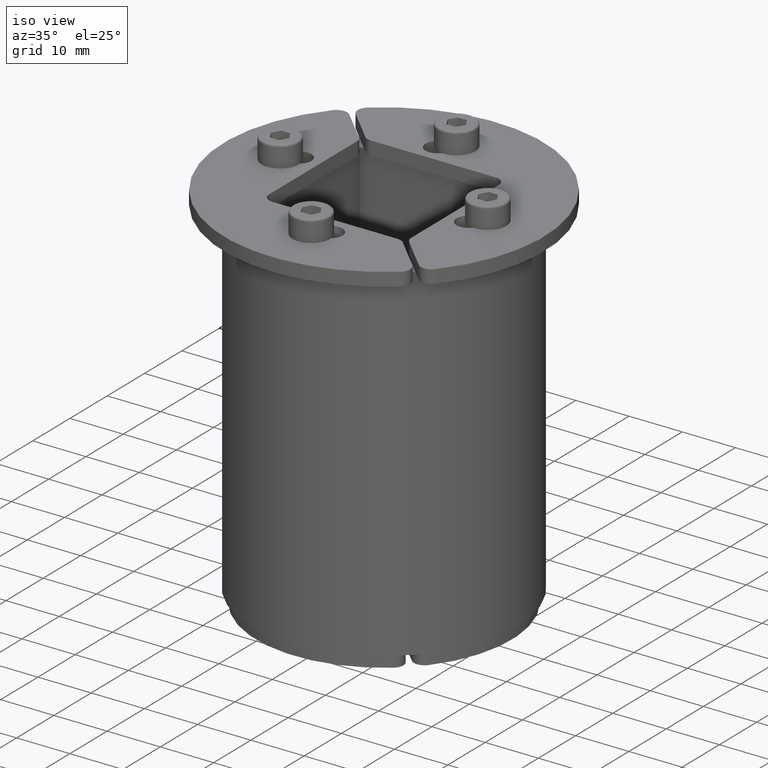
[diagram: clean part render]
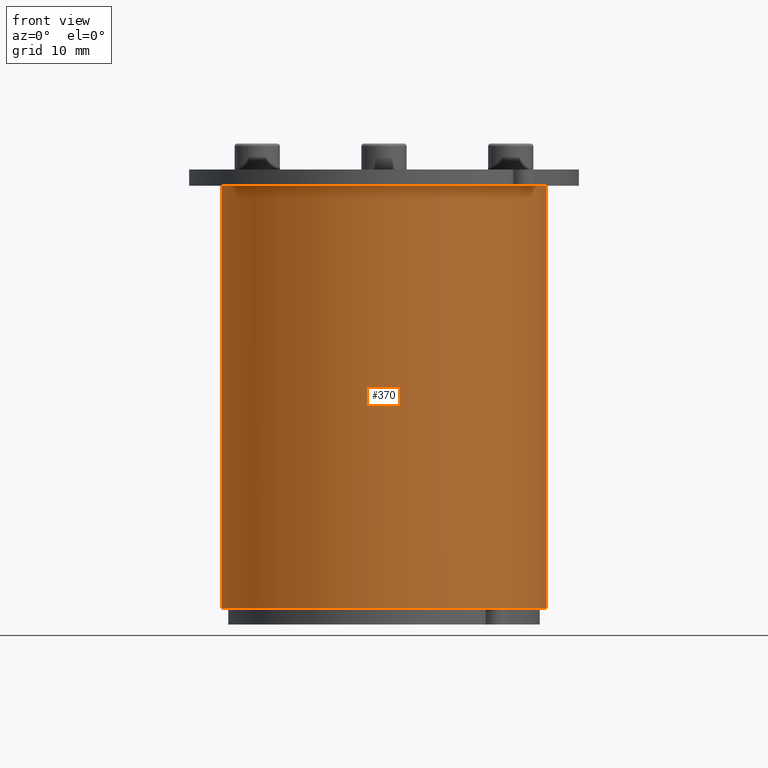
[diagram: tour spotlight — one face highlighted and labeled with its STEP entity id]
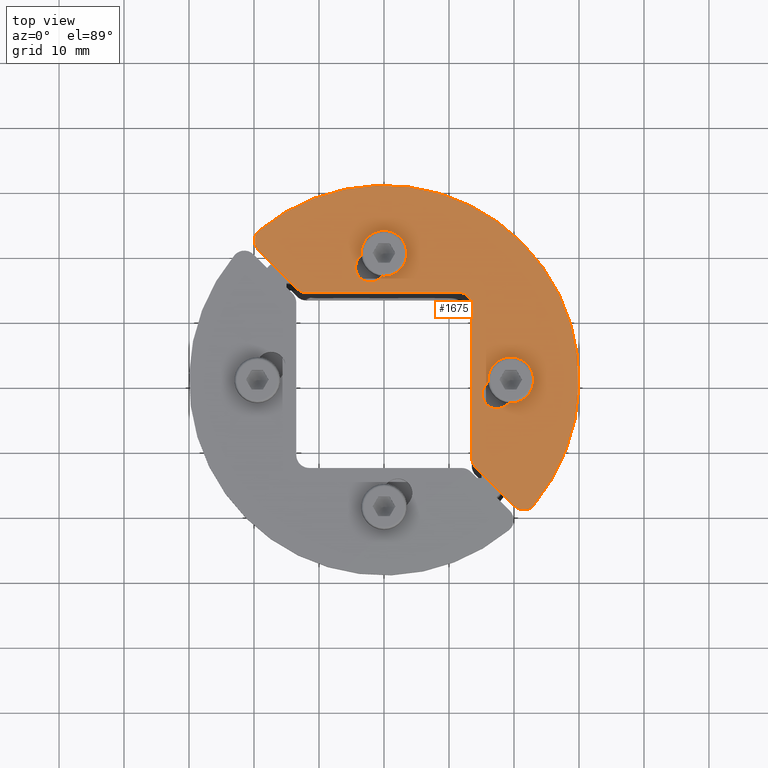
[diagram: tour spotlight — one face highlighted and labeled with its STEP entity id]
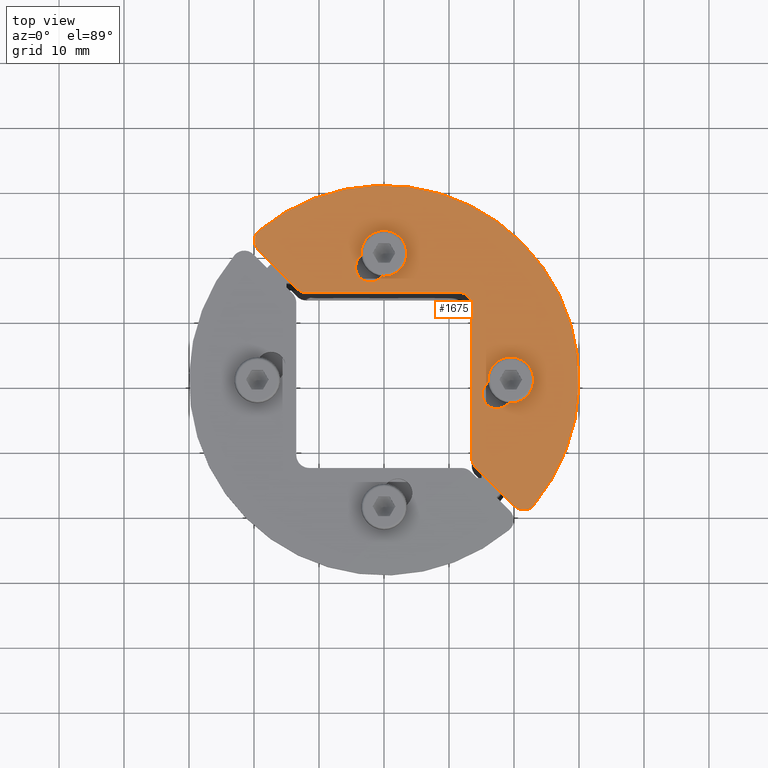
[diagram: tour spotlight — one face highlighted and labeled with its STEP entity id]
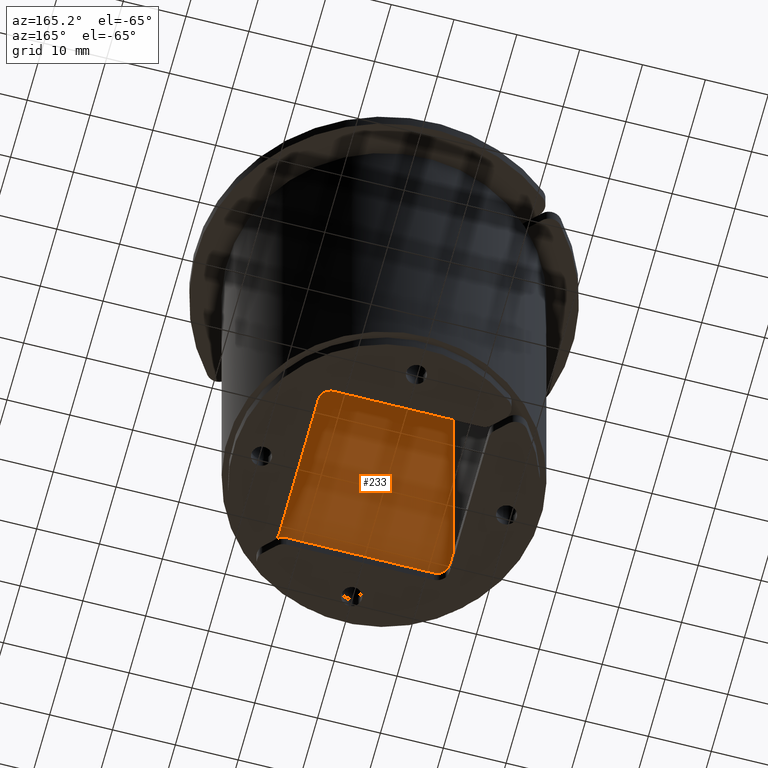
[diagram: tour spotlight — one face highlighted and labeled with its STEP entity id]
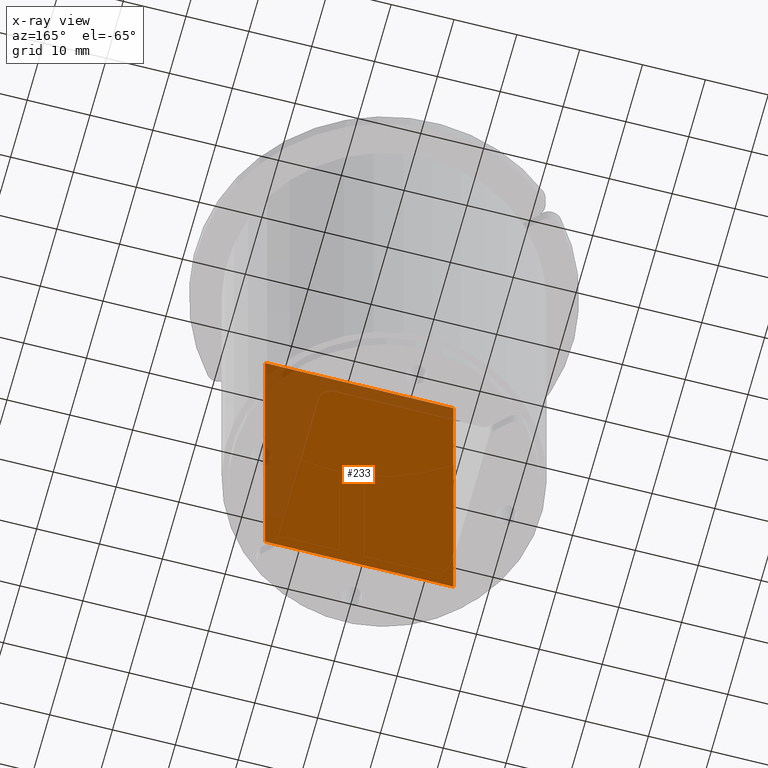
[diagram: x-ray of the same camera — body ghosted, this tour face saturated]
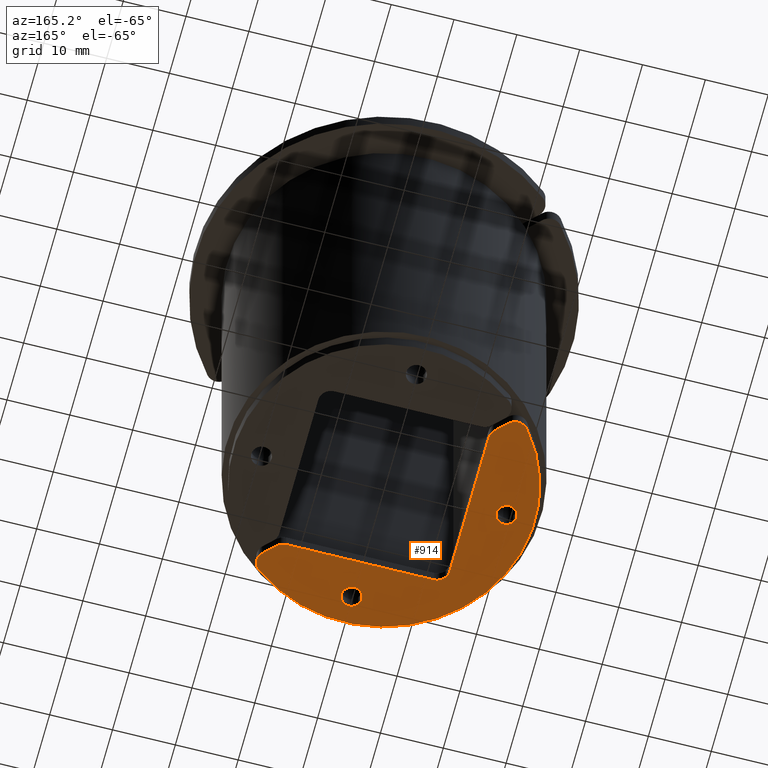
[diagram: tour spotlight — one face highlighted and labeled with its STEP entity id]
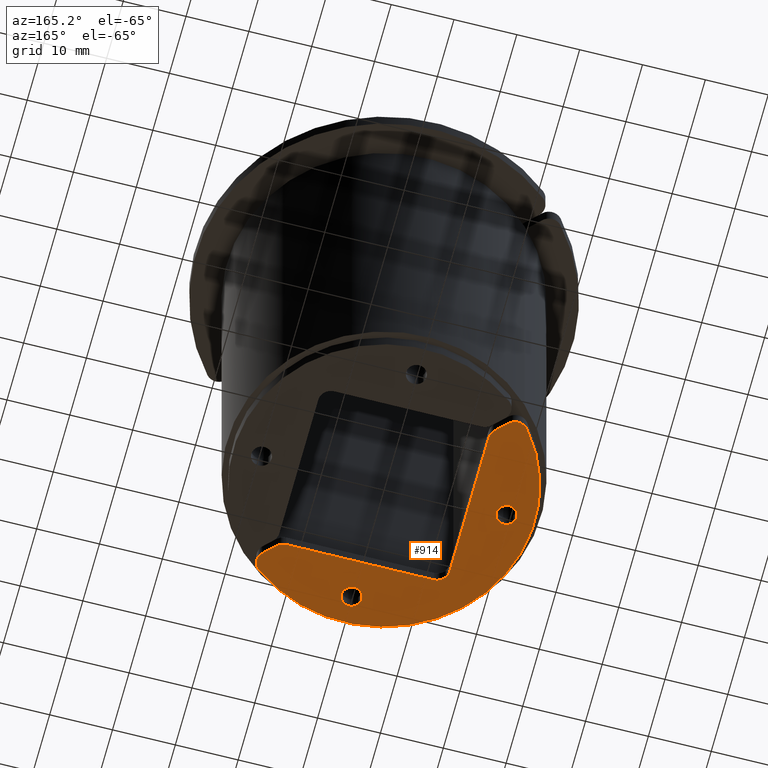
[diagram: tour spotlight — one face highlighted and labeled with its STEP entity id]
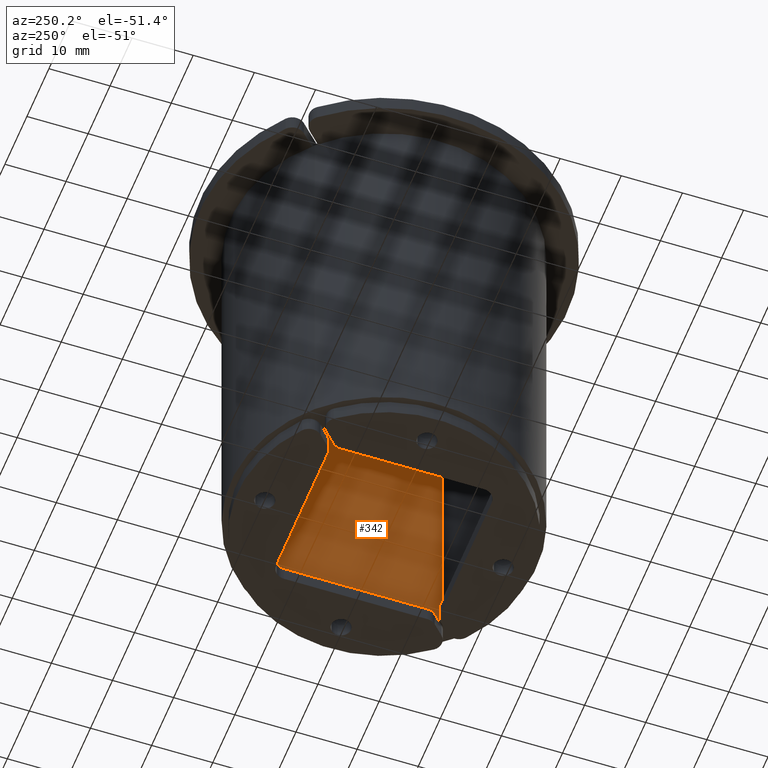
[diagram: tour spotlight — one face highlighted and labeled with its STEP entity id]
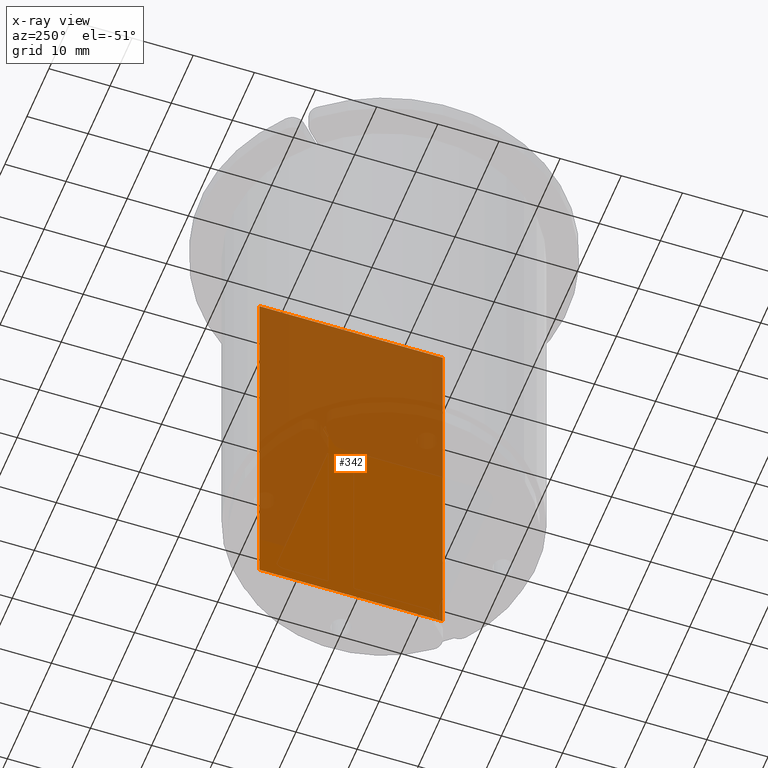
[diagram: x-ray of the same camera — body ghosted, this tour face saturated]
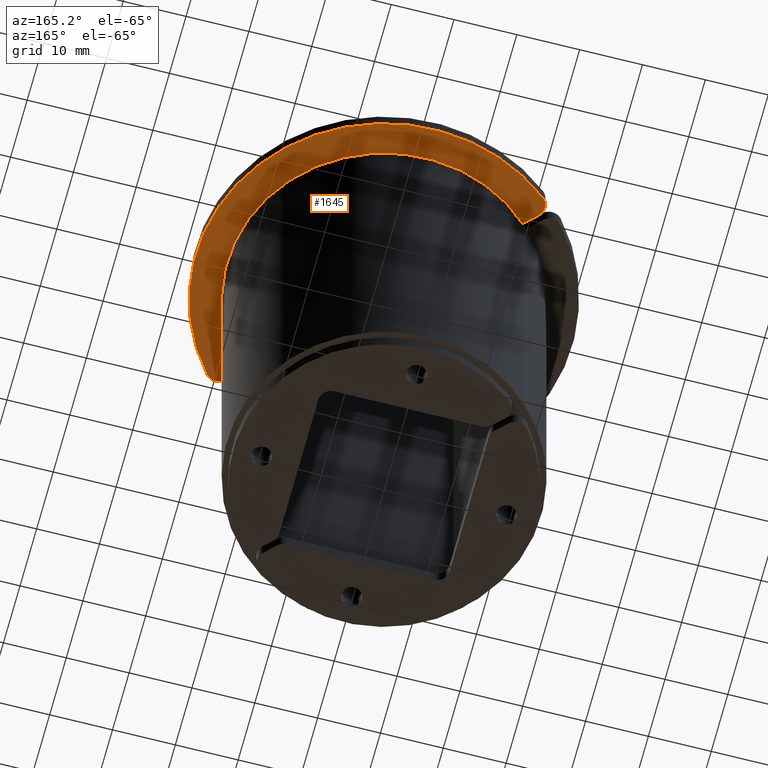
[diagram: tour spotlight — one face highlighted and labeled with its STEP entity id]
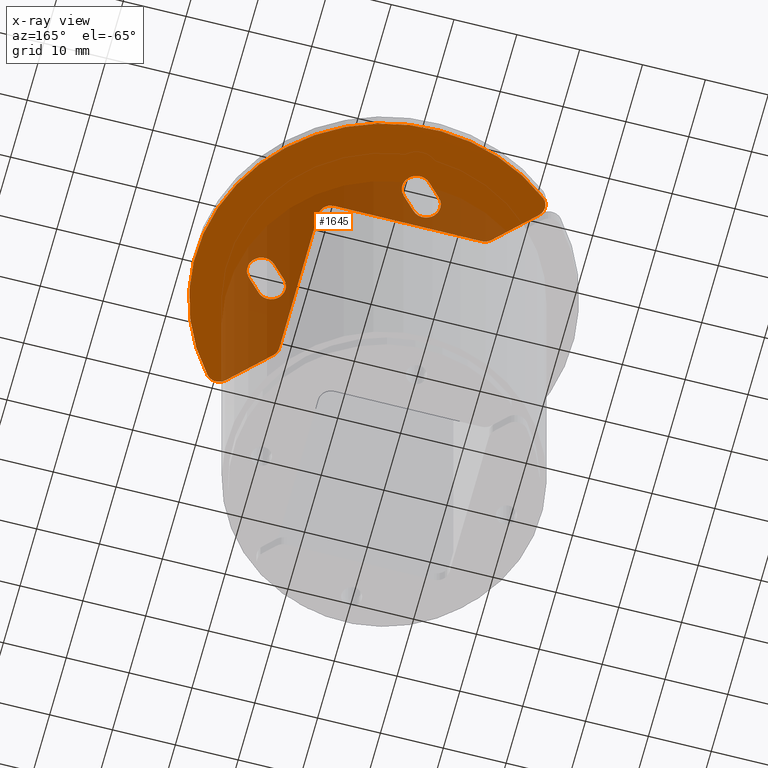
[diagram: x-ray of the same camera — body ghosted, this tour face saturated]
A machine part: a face-by-face anatomy tour. The part has 139 B-rep faces; the first image is the clean iso view, then the 8 largest visible faces are spotlighted one at a time (largest first), each with its STEP entity span.

Face 1 — front view, entity #370. In plain terms, the highlighted cylindrical surface (bore or boss wall) has radius 25 mm, axis along (0, 0, -1).
Definition (entity closure, byte-faithful):
#343=CARTESIAN_POINT('',(0.0,0.0,0.0));
#344=DIRECTION('',(0.0,0.0,-1.0));
#345=DIRECTION('',(0.707106781186547,-0.707106781186548,0.0));
#346=AXIS2_PLACEMENT_3D('',#343,#344,#345);
#347=CYLINDRICAL_SURFACE('',#346,24.999999999999996);
#348=CARTESIAN_POINT('',(-17.677669529663671,17.677669529663717,0.0));
#349=VERTEX_POINT('',#348);
#350=CARTESIAN_POINT('',(0.0,0.0,0.0));
#351=DIRECTION('',(0.0,0.0,1.0));
#352=DIRECTION('',(0.707106781186547,-0.707106781186548,0.0));
#353=AXIS2_PLACEMENT_3D('',#350,#351,#352);
#354=CIRCLE('',#353,24.999999999999996);
#355=EDGE_CURVE('',#349,#349,#354,.T.);
#356=ORIENTED_EDGE('',*,*,#355,.F.);
#357=EDGE_LOOP('',(#356));
#358=FACE_OUTER_BOUND('',#357,.T.);
#359=CARTESIAN_POINT('',(-17.677669529663671,17.677669529663717,-65.0));
#360=VERTEX_POINT('',#359);
#361=CARTESIAN_POINT('',(0.0,0.0,-65.0));
#362=DIRECTION('',(0.0,0.0,-1.0));
#363=DIRECTION('',(0.707106781186547,-0.707106781186548,0.0));
#364=AXIS2_PLACEMENT_3D('',#361,#362,#363);
#365=CIRCLE('',#364,24.999999999999996);
#366=EDGE_CURVE('',#360,#360,#365,.T.);
#367=ORIENTED_EDGE('',*,*,#366,.F.);
#368=EDGE_LOOP('',(#367));
#369=FACE_BOUND('',#368,.T.);
#370=ADVANCED_FACE('',(#358,#369),#347,.T.);

Face 2 — top view, entity #1675. In plain terms, the highlighted planar face has unit normal (0, 0, 1).
Definition (entity closure, byte-faithful):
#1043=CARTESIAN_POINT('',(21.090990257669752,-1.590990257669733,0.0));
#1044=VERTEX_POINT('',#1043);
#1045=CARTESIAN_POINT('',(18.969669914110124,-3.712310601229367,0.0));
#1046=VERTEX_POINT('',#1045);
#1047=CARTESIAN_POINT('',(21.090990257669755,-1.590990257669733,0.0));
#1048=DIRECTION('',(-0.707106781186547,-0.707106781186548,0.0));
#1049=VECTOR('',#1048,2.999999999999986);
#1050=LINE('',#1047,#1049);
#1051=EDGE_CURVE('',#1044,#1046,#1050,.T.);
#1083=CARTESIAN_POINT('',(17.909009742330294,1.590990257669733,0.0));
#1084=VERTEX_POINT('',#1083);
#1085=CARTESIAN_POINT('',(19.500000000000025,0.0,0.0));
#1086=DIRECTION('',(0.0,0.0,-1.0));
#1087=DIRECTION('',(0.707106781186547,-0.707106781186549,0.0));
#1088=AXIS2_PLACEMENT_3D('',#1085,#1086,#1087);
#1089=CIRCLE('',#1088,2.25);
#1090=EDGE_CURVE('',#1084,#1044,#1089,.T.);
#1116=CARTESIAN_POINT('',(15.787689398770659,-0.530330085889901,0.0));
#1117=VERTEX_POINT('',#1116);
#1118=CARTESIAN_POINT('',(15.787689398770659,-0.5303300858899,0.0));
#1119=DIRECTION('',(0.707106781186548,0.707106781186547,0.0));
#1120=VECTOR('',#1119,2.999999999999989);
#1121=LINE('',#1118,#1120);
#1122=EDGE_CURVE('',#1117,#1084,#1121,.T.);
#1147=CARTESIAN_POINT('',(17.378679656440394,-2.121320343559634,0.0));
#1148=DIRECTION('',(0.0,0.0,-1.0));
#1149=DIRECTION('',(-0.707106781186548,0.707106781186548,0.0));
#1150=AXIS2_PLACEMENT_3D('',#1147,#1148,#1149);
#1151=CIRCLE('',#1150,2.25);
#1152=EDGE_CURVE('',#1046,#1117,#1151,.T.);
#1171=CARTESIAN_POINT('',(1.590990257669729,17.909009742330294,0.0));
#1172=VERTEX_POINT('',#1171);
#1173=CARTESIAN_POINT('',(-0.530330085889901,15.787689398770661,0.0));
#1174=VERTEX_POINT('',#1173);
#1175=CARTESIAN_POINT('',(1.59099025766973,17.909009742330294,0.0));
#1176=DIRECTION('',(-0.707106781186547,-0.707106781186548,0.0));
#1177=VECTOR('',#1176,2.999999999999985);
#1178=LINE('',#1175,#1177);
#1179=EDGE_CURVE('',#1172,#1174,#1178,.T.);
#1211=CARTESIAN_POINT('',(-1.590990257669729,21.090990257669752,0.0));
#1212=VERTEX_POINT('',#1211);
#1213=CARTESIAN_POINT('',(0.0,19.500000000000025,0.0));
#1214=DIRECTION('',(0.0,0.0,-1.0));
#1215=DIRECTION('',(0.707106781186548,-0.707106781186548,0.0));
#1216=AXIS2_PLACEMENT_3D('',#1213,#1214,#1215);
#1217=CIRCLE('',#1216,2.25);
#1218=EDGE_CURVE('',#1212,#1172,#1217,.T.);
#1244=CARTESIAN_POINT('',(-3.712310601229372,18.969669914110124,0.0));
#1245=VERTEX_POINT('',#1244);
#1246=CARTESIAN_POINT('',(-3.712310601229373,18.969669914110124,0.0));
#1247=DIRECTION('',(0.70710678118655,0.707106781186546,0.0));
#1248=VECTOR('',#1247,2.999999999999993);
#1249=LINE('',#1246,#1248);
#1250=EDGE_CURVE('',#1245,#1212,#1249,.T.);
#1275=CARTESIAN_POINT('',(-2.121320343559634,17.378679656440394,0.0));
#1276=DIRECTION('',(0.0,0.0,-1.0));
#1277=DIRECTION('',(-0.70710678118655,0.707106781186546,0.0));
#1278=AXIS2_PLACEMENT_3D('',#1275,#1276,#1277);
#1279=CIRCLE('',#1278,2.249999999999999);
#1280=EDGE_CURVE('',#1174,#1245,#1279,.T.);
#1299=CARTESIAN_POINT('',(-19.234443042801722,23.022515084873273,0.0));
#1300=VERTEX_POINT('',#1299);
#1301=CARTESIAN_POINT('',(-19.366360402321767,20.073467183508331,0.0));
#1302=VERTEX_POINT('',#1301);
#1303=CARTESIAN_POINT('',(-17.952146839948682,21.487680745881409,0.0));
#1304=DIRECTION('',(0.0,0.0,1.0));
#1305=DIRECTION('',(-0.641148101426526,0.76741716949594,0.0));
#1306=AXIS2_PLACEMENT_3D('',#1303,#1304,#1305);
#1307=CIRCLE('',#1306,2.0);
#1308=EDGE_CURVE('',#1300,#1302,#1307,.T.);
#1341=CARTESIAN_POINT('',(-13.37867965644033,14.085786437626918,0.0));
#1342=VERTEX_POINT('',#1341);
#1343=CARTESIAN_POINT('',(-19.366360402321767,20.073467183508331,0.0));
#1344=DIRECTION('',(0.707106781186549,-0.707106781186546,0.0));
#1345=VECTOR('',#1344,8.467859317985763);
#1346=LINE('',#1343,#1345);
#1347=EDGE_CURVE('',#1302,#1342,#1346,.T.);
#1372=CARTESIAN_POINT('',(-11.964466094067234,13.500000000000014,0.0));
#1373=VERTEX_POINT('',#1372);
#1374=CARTESIAN_POINT('',(-11.964466094067234,15.500000000000014,0.0));
#1375=DIRECTION('',(0.0,0.0,1.0));
#1376=DIRECTION('',(-0.707106781186548,-0.707106781186548,0.0));
#1377=AXIS2_PLACEMENT_3D('',#1374,#1375,#1376);
#1378=CIRCLE('',#1377,2.0);
#1379=EDGE_CURVE('',#1342,#1373,#1378,.T.);
#1405=CARTESIAN_POINT('',(11.500000000000005,13.500000000000014,0.0));
#1406=VERTEX_POINT('',#1405);
#1407=CARTESIAN_POINT('',(-11.964466094067234,13.500000000000014,0.0));
#1408=DIRECTION('',(1.0,0.0,0.0));
#1409=VECTOR('',#1408,23.464466094067241);
#1410=LINE('',#1407,#1409);
#1411=EDGE_CURVE('',#1373,#1406,#1410,.T.);
#1436=CARTESIAN_POINT('',(13.500000000000014,11.499999999999988,0.0));
#1437=VERTEX_POINT('',#1436);
#1438=CARTESIAN_POINT('',(11.500000000000005,11.500000000000005,0.0));
#1439=DIRECTION('',(0.0,0.0,-1.0));
#1440=DIRECTION('',(-1.0,0.0,0.0));
#1441=AXIS2_PLACEMENT_3D('',#1438,#1439,#1440);
#1442=CIRCLE('',#1441,2.0);
#1443=EDGE_CURVE('',#1406,#1437,#1442,.T.);
#1469=CARTESIAN_POINT('',(13.499999999999998,-11.96446609406725,0.0));
#1470=VERTEX_POINT('',#1469);
#1471=CARTESIAN_POINT('',(13.500000000000014,11.499999999999986,0.0));
#1472=DIRECTION('',(0.0,-1.0,0.0));
#1473=VECTOR('',#1472,23.464466094067234);
#1474=LINE('',#1471,#1473);
#1475=EDGE_CURVE('',#1437,#1470,#1474,.T.);
#1500=CARTESIAN_POINT('',(14.085786437626908,-13.378679656440342,0.0));
#1501=VERTEX_POINT('',#1500);
#1502=CARTESIAN_POINT('',(15.500000000000016,-11.964466094067234,0.0));
#1503=DIRECTION('',(0.0,0.0,1.0));
#1504=DIRECTION('',(-1.0,0.0,0.0));
#1505=AXIS2_PLACEMENT_3D('',#1502,#1503,#1504);
#1506=CIRCLE('',#1505,1.999999999999996);
#1507=EDGE_CURVE('',#1470,#1501,#1506,.T.);
#1533=CARTESIAN_POINT('',(20.07346718350831,-19.366360402321739,0.0));
#1534=VERTEX_POINT('',#1533);
#1535=CARTESIAN_POINT('',(14.085786437626908,-13.378679656440342,0.0));
#1536=DIRECTION('',(0.707106781186548,-0.707106781186547,0.0));
#1537=VECTOR('',#1536,8.467859317985726);
#1538=LINE('',#1535,#1537);
#1539=EDGE_CURVE('',#1501,#1534,#1538,.T.);
#1564=CARTESIAN_POINT('',(23.022515084872865,-19.234443042802209,0.0));
#1565=VERTEX_POINT('',#1564);
#1566=CARTESIAN_POINT('',(21.487680745881409,-17.952146839948654,0.0));
#1567=DIRECTION('',(0.0,0.0,1.0));
#1568=DIRECTION('',(-0.707106781186552,-0.707106781186543,0.0));
#1569=AXIS2_PLACEMENT_3D('',#1566,#1567,#1568);
#1570=CIRCLE('',#1569,2.0);
#1571=EDGE_CURVE('',#1534,#1565,#1570,.T.);
#1597=CARTESIAN_POINT('',(0.0,0.0,0.0));
#1598=DIRECTION('',(0.0,0.0,1.0));
#1599=DIRECTION('',(0.767417169495762,-0.64114810142674,0.0));
#1600=AXIS2_PLACEMENT_3D('',#1597,#1598,#1599);
#1601=CIRCLE('',#1600,29.999999999999996);
#1602=EDGE_CURVE('',#1565,#1300,#1601,.T.);
#1646=CARTESIAN_POINT('',(9.299162312304922,9.299162312304928,0.0));
#1647=DIRECTION('',(0.0,0.0,1.0));
#1648=DIRECTION('',(1.0,0.0,0.0));
#1649=AXIS2_PLACEMENT_3D('',#1646,#1647,#1648);
#1650=PLANE('',#1649);
#1651=ORIENTED_EDGE('',*,*,#1602,.T.);
#1652=ORIENTED_EDGE('',*,*,#1308,.T.);
#1653=ORIENTED_EDGE('',*,*,#1347,.T.);
#1654=ORIENTED_EDGE('',*,*,#1379,.T.);
#1655=ORIENTED_EDGE('',*,*,#1411,.T.);
#1656=ORIENTED_EDGE('',*,*,#1443,.T.);
#1657=ORIENTED_EDGE('',*,*,#1475,.T.);
#1658=ORIENTED_EDGE('',*,*,#1507,.T.);
#1659=ORIENTED_EDGE('',*,*,#1539,.T.);
#1660=ORIENTED_EDGE('',*,*,#1571,.T.);
#1661=EDGE_LOOP('',(#1651,#1652,#1653,#1654,#1655,#1656,#1657,#1658,#1659,#1660));
#1662=FACE_OUTER_BOUND('',#1661,.T.);
#1663=ORIENTED_EDGE('',*,*,#1051,.T.);
#1664=ORIENTED_EDGE('',*,*,#1152,.T.);
#1665=ORIENTED_EDGE('',*,*,#1122,.T.);
#1666=ORIENTED_EDGE('',*,*,#1090,.T.);
#1667=EDGE_LOOP('',(#1663,#1664,#1665,#1666));
#1668=FACE_BOUND('',#1667,.T.);
#1669=ORIENTED_EDGE('',*,*,#1179,.T.);
#1670=ORIENTED_EDGE('',*,*,#1280,.T.);
#1671=ORIENTED_EDGE('',*,*,#1250,.T.);
#1672=ORIENTED_EDGE('',*,*,#1218,.T.);
#1673=EDGE_LOOP('',(#1669,#1670,#1671,#1672));
#1674=FACE_BOUND('',#1673,.T.);
#1675=ADVANCED_FACE('',(#1662,#1668,#1674),#1650,.T.);

Face 3 — top view, entity #1675. In plain terms, the highlighted planar face has unit normal (0, -0, 1).
Definition (entity closure, byte-faithful):
#1043=CARTESIAN_POINT('',(21.090990257669752,-1.590990257669733,0.0));
#1044=VERTEX_POINT('',#1043);
#1045=CARTESIAN_POINT('',(18.969669914110124,-3.712310601229367,0.0));
#1046=VERTEX_POINT('',#1045);
#1047=CARTESIAN_POINT('',(21.090990257669755,-1.590990257669733,0.0));
#1048=DIRECTION('',(-0.707106781186547,-0.707106781186548,0.0));
#1049=VECTOR('',#1048,2.999999999999986);
#1050=LINE('',#1047,#1049);
#1051=EDGE_CURVE('',#1044,#1046,#1050,.T.);
#1083=CARTESIAN_POINT('',(17.909009742330294,1.590990257669733,0.0));
#1084=VERTEX_POINT('',#1083);
#1085=CARTESIAN_POINT('',(19.500000000000025,0.0,0.0));
#1086=DIRECTION('',(0.0,0.0,-1.0));
#1087=DIRECTION('',(0.707106781186547,-0.707106781186549,0.0));
#1088=AXIS2_PLACEMENT_3D('',#1085,#1086,#1087);
#1089=CIRCLE('',#1088,2.25);
#1090=EDGE_CURVE('',#1084,#1044,#1089,.T.);
#1116=CARTESIAN_POINT('',(15.787689398770659,-0.530330085889901,0.0));
#1117=VERTEX_POINT('',#1116);
#1118=CARTESIAN_POINT('',(15.787689398770659,-0.5303300858899,0.0));
#1119=DIRECTION('',(0.707106781186548,0.707106781186547,0.0));
#1120=VECTOR('',#1119,2.999999999999989);
#1121=LINE('',#1118,#1120);
#1122=EDGE_CURVE('',#1117,#1084,#1121,.T.);
#1147=CARTESIAN_POINT('',(17.378679656440394,-2.121320343559634,0.0));
#1148=DIRECTION('',(0.0,0.0,-1.0));
#1149=DIRECTION('',(-0.707106781186548,0.707106781186548,0.0));
#1150=AXIS2_PLACEMENT_3D('',#1147,#1148,#1149);
#1151=CIRCLE('',#1150,2.25);
#1152=EDGE_CURVE('',#1046,#1117,#1151,.T.);
#1171=CARTESIAN_POINT('',(1.590990257669729,17.909009742330294,0.0));
#1172=VERTEX_POINT('',#1171);
#1173=CARTESIAN_POINT('',(-0.530330085889901,15.787689398770661,0.0));
#1174=VERTEX_POINT('',#1173);
#1175=CARTESIAN_POINT('',(1.59099025766973,17.909009742330294,0.0));
#1176=DIRECTION('',(-0.707106781186547,-0.707106781186548,0.0));
#1177=VECTOR('',#1176,2.999999999999985);
#1178=LINE('',#1175,#1177);
#1179=EDGE_CURVE('',#1172,#1174,#1178,.T.);
#1211=CARTESIAN_POINT('',(-1.590990257669729,21.090990257669752,0.0));
#1212=VERTEX_POINT('',#1211);
#1213=CARTESIAN_POINT('',(0.0,19.500000000000025,0.0));
#1214=DIRECTION('',(0.0,0.0,-1.0));
#1215=DIRECTION('',(0.707106781186548,-0.707106781186548,0.0));
#1216=AXIS2_PLACEMENT_3D('',#1213,#1214,#1215);
#1217=CIRCLE('',#1216,2.25);
#1218=EDGE_CURVE('',#1212,#1172,#1217,.T.);
#1244=CARTESIAN_POINT('',(-3.712310601229372,18.969669914110124,0.0));
#1245=VERTEX_POINT('',#1244);
#1246=CARTESIAN_POINT('',(-3.712310601229373,18.969669914110124,0.0));
#1247=DIRECTION('',(0.70710678118655,0.707106781186546,0.0));
#1248=VECTOR('',#1247,2.999999999999993);
#1249=LINE('',#1246,#1248);
#1250=EDGE_CURVE('',#1245,#1212,#1249,.T.);
#1275=CARTESIAN_POINT('',(-2.121320343559634,17.378679656440394,0.0));
#1276=DIRECTION('',(0.0,0.0,-1.0));
#1277=DIRECTION('',(-0.70710678118655,0.707106781186546,0.0));
#1278=AXIS2_PLACEMENT_3D('',#1275,#1276,#1277);
#1279=CIRCLE('',#1278,2.249999999999999);
#1280=EDGE_CURVE('',#1174,#1245,#1279,.T.);
#1299=CARTESIAN_POINT('',(-19.234443042801722,23.022515084873273,0.0));
#1300=VERTEX_POINT('',#1299);
#1301=CARTESIAN_POINT('',(-19.366360402321767,20.073467183508331,0.0));
#1302=VERTEX_POINT('',#1301);
#1303=CARTESIAN_POINT('',(-17.952146839948682,21.487680745881409,0.0));
#1304=DIRECTION('',(0.0,0.0,1.0));
#1305=DIRECTION('',(-0.641148101426526,0.76741716949594,0.0));
#1306=AXIS2_PLACEMENT_3D('',#1303,#1304,#1305);
#1307=CIRCLE('',#1306,2.0);
#1308=EDGE_CURVE('',#1300,#1302,#1307,.T.);
#1341=CARTESIAN_POINT('',(-13.37867965644033,14.085786437626918,0.0));
#1342=VERTEX_POINT('',#1341);
#1343=CARTESIAN_POINT('',(-19.366360402321767,20.073467183508331,0.0));
#1344=DIRECTION('',(0.707106781186549,-0.707106781186546,0.0));
#1345=VECTOR('',#1344,8.467859317985763);
#1346=LINE('',#1343,#1345);
#1347=EDGE_CURVE('',#1302,#1342,#1346,.T.);
#1372=CARTESIAN_POINT('',(-11.964466094067234,13.500000000000014,0.0));
#1373=VERTEX_POINT('',#1372);
#1374=CARTESIAN_POINT('',(-11.964466094067234,15.500000000000014,0.0));
#1375=DIRECTION('',(0.0,0.0,1.0));
#1376=DIRECTION('',(-0.707106781186548,-0.707106781186548,0.0));
#1377=AXIS2_PLACEMENT_3D('',#1374,#1375,#1376);
#1378=CIRCLE('',#1377,2.0);
#1379=EDGE_CURVE('',#1342,#1373,#1378,.T.);
#1405=CARTESIAN_POINT('',(11.500000000000005,13.500000000000014,0.0));
#1406=VERTEX_POINT('',#1405);
#1407=CARTESIAN_POINT('',(-11.964466094067234,13.500000000000014,0.0));
#1408=DIRECTION('',(1.0,0.0,0.0));
#1409=VECTOR('',#1408,23.464466094067241);
#1410=LINE('',#1407,#1409);
#1411=EDGE_CURVE('',#1373,#1406,#1410,.T.);
#1436=CARTESIAN_POINT('',(13.500000000000014,11.499999999999988,0.0));
#1437=VERTEX_POINT('',#1436);
#1438=CARTESIAN_POINT('',(11.500000000000005,11.500000000000005,0.0));
#1439=DIRECTION('',(0.0,0.0,-1.0));
#1440=DIRECTION('',(-1.0,0.0,0.0));
#1441=AXIS2_PLACEMENT_3D('',#1438,#1439,#1440);
#1442=CIRCLE('',#1441,2.0);
#1443=EDGE_CURVE('',#1406,#1437,#1442,.T.);
#1469=CARTESIAN_POINT('',(13.499999999999998,-11.96446609406725,0.0));
#1470=VERTEX_POINT('',#1469);
#1471=CARTESIAN_POINT('',(13.500000000000014,11.499999999999986,0.0));
#1472=DIRECTION('',(0.0,-1.0,0.0));
#1473=VECTOR('',#1472,23.464466094067234);
#1474=LINE('',#1471,#1473);
#1475=EDGE_CURVE('',#1437,#1470,#1474,.T.);
#1500=CARTESIAN_POINT('',(14.085786437626908,-13.378679656440342,0.0));
#1501=VERTEX_POINT('',#1500);
#1502=CARTESIAN_POINT('',(15.500000000000016,-11.964466094067234,0.0));
#1503=DIRECTION('',(0.0,0.0,1.0));
#1504=DIRECTION('',(-1.0,0.0,0.0));
#1505=AXIS2_PLACEMENT_3D('',#1502,#1503,#1504);
#1506=CIRCLE('',#1505,1.999999999999996);
#1507=EDGE_CURVE('',#1470,#1501,#1506,.T.);
#1533=CARTESIAN_POINT('',(20.07346718350831,-19.366360402321739,0.0));
#1534=VERTEX_POINT('',#1533);
#1535=CARTESIAN_POINT('',(14.085786437626908,-13.378679656440342,0.0));
#1536=DIRECTION('',(0.707106781186548,-0.707106781186547,0.0));
#1537=VECTOR('',#1536,8.467859317985726);
#1538=LINE('',#1535,#1537);
#1539=EDGE_CURVE('',#1501,#1534,#1538,.T.);
#1564=CARTESIAN_POINT('',(23.022515084872865,-19.234443042802209,0.0));
#1565=VERTEX_POINT('',#1564);
#1566=CARTESIAN_POINT('',(21.487680745881409,-17.952146839948654,0.0));
#1567=DIRECTION('',(0.0,0.0,1.0));
#1568=DIRECTION('',(-0.707106781186552,-0.707106781186543,0.0));
#1569=AXIS2_PLACEMENT_3D('',#1566,#1567,#1568);
#1570=CIRCLE('',#1569,2.0);
#1571=EDGE_CURVE('',#1534,#1565,#1570,.T.);
#1597=CARTESIAN_POINT('',(0.0,0.0,0.0));
#1598=DIRECTION('',(0.0,0.0,1.0));
#1599=DIRECTION('',(0.767417169495762,-0.64114810142674,0.0));
#1600=AXIS2_PLACEMENT_3D('',#1597,#1598,#1599);
#1601=CIRCLE('',#1600,29.999999999999996);
#1602=EDGE_CURVE('',#1565,#1300,#1601,.T.);
#1646=CARTESIAN_POINT('',(9.299162312304922,9.299162312304928,0.0));
#1647=DIRECTION('',(0.0,0.0,1.0));
#1648=DIRECTION('',(1.0,0.0,0.0));
#1649=AXIS2_PLACEMENT_3D('',#1646,#1647,#1648);
#1650=PLANE('',#1649);
#1651=ORIENTED_EDGE('',*,*,#1602,.T.);
#1652=ORIENTED_EDGE('',*,*,#1308,.T.);
#1653=ORIENTED_EDGE('',*,*,#1347,.T.);
#1654=ORIENTED_EDGE('',*,*,#1379,.T.);
#1655=ORIENTED_EDGE('',*,*,#1411,.T.);
#1656=ORIENTED_EDGE('',*,*,#1443,.T.);
#1657=ORIENTED_EDGE('',*,*,#1475,.T.);
#1658=ORIENTED_EDGE('',*,*,#1507,.T.);
#1659=ORIENTED_EDGE('',*,*,#1539,.T.);
#1660=ORIENTED_EDGE('',*,*,#1571,.T.);
#1661=EDGE_LOOP('',(#1651,#1652,#1653,#1654,#1655,#1656,#1657,#1658,#1659,#1660));
#1662=FACE_OUTER_BOUND('',#1661,.T.);
#1663=ORIENTED_EDGE('',*,*,#1051,.T.);
#1664=ORIENTED_EDGE('',*,*,#1152,.T.);
#1665=ORIENTED_EDGE('',*,*,#1122,.T.);
#1666=ORIENTED_EDGE('',*,*,#1090,.T.);
#1667=EDGE_LOOP('',(#1663,#1664,#1665,#1666));
#1668=FACE_BOUND('',#1667,.T.);
#1669=ORIENTED_EDGE('',*,*,#1179,.T.);
#1670=ORIENTED_EDGE('',*,*,#1280,.T.);
#1671=ORIENTED_EDGE('',*,*,#1250,.T.);
#1672=ORIENTED_EDGE('',*,*,#1218,.T.);
#1673=EDGE_LOOP('',(#1669,#1670,#1671,#1672));
#1674=FACE_BOUND('',#1673,.T.);
#1675=ADVANCED_FACE('',(#1662,#1668,#1674),#1650,.T.);

Face 4 — auxiliary view, entity #233. An x-ray twin of the same camera follows (body ghosted, this face saturated) — the face is partly hidden behind the body. In plain terms, the highlighted planar face has unit normal (0, -1, 0).
Definition (entity closure, byte-faithful):
#170=CARTESIAN_POINT('',(-15.000000000000695,-15.00000000000002,0.0));
#171=VERTEX_POINT('',#170);
#178=CARTESIAN_POINT('',(-15.000000000000695,-15.00000000000002,-65.0));
#179=VERTEX_POINT('',#178);
#180=CARTESIAN_POINT('',(-15.000000000000695,-15.00000000000002,0.0));
#181=DIRECTION('',(0.0,0.0,-1.0));
#182=VECTOR('',#181,65.0);
#183=LINE('',#180,#182);
#184=EDGE_CURVE('',#171,#179,#183,.T.);
#203=CARTESIAN_POINT('',(14.999999999999288,-15.000000000000718,0.0));
#204=DIRECTION('',(0.0,-1.0,0.0));
#205=DIRECTION('',(-1.0,0.0,0.0));
#206=AXIS2_PLACEMENT_3D('',#203,#204,#205);
#207=PLANE('',#206);
#208=CARTESIAN_POINT('',(15.0,-15.0,0.0));
#209=VERTEX_POINT('',#208);
#210=CARTESIAN_POINT('',(-15.000000000000695,-15.00000000000002,0.0));
#211=DIRECTION('',(1.0,0.0,0.0));
#212=VECTOR('',#211,29.999999999999982);
#213=LINE('',#210,#212);
#214=EDGE_CURVE('',#171,#209,#213,.T.);
#215=ORIENTED_EDGE('',*,*,#214,.T.);
#216=CARTESIAN_POINT('',(15.0,-15.0,-65.0));
#217=VERTEX_POINT('',#216);
#218=CARTESIAN_POINT('',(15.0,-15.0,0.0));
#219=DIRECTION('',(0.0,0.0,-1.0));
#220=VECTOR('',#219,65.0);
#221=LINE('',#218,#220);
#222=EDGE_CURVE('',#209,#217,#221,.T.);
#223=ORIENTED_EDGE('',*,*,#222,.T.);
#224=CARTESIAN_POINT('',(14.999999999999288,-15.000000000000719,-65.0));
#225=DIRECTION('',(-1.0,0.0,0.0));
#226=VECTOR('',#225,29.999999999999982);
#227=LINE('',#224,#226);
#228=EDGE_CURVE('',#217,#179,#227,.T.);
#229=ORIENTED_EDGE('',*,*,#228,.T.);
#230=ORIENTED_EDGE('',*,*,#184,.F.);
#231=EDGE_LOOP('',(#215,#223,#229,#230));
#232=FACE_OUTER_BOUND('',#231,.T.);
#233=ADVANCED_FACE('',(#232),#207,.F.);

Face 5 — auxiliary view, entity #914. In plain terms, the highlighted planar face has unit normal (0, 0, 1).
Definition (entity closure, byte-faithful):
#518=CARTESIAN_POINT('',(17.879000000000001,-1.985152E-016,-2.5));
#519=VERTEX_POINT('',#518);
#520=CARTESIAN_POINT('',(19.5,0.0,-2.5));
#521=DIRECTION('',(0.0,0.0,1.0));
#522=DIRECTION('',(1.0,0.0,0.0));
#523=AXIS2_PLACEMENT_3D('',#520,#521,#522);
#524=CIRCLE('',#523,1.621);
#525=EDGE_CURVE('',#519,#519,#524,.T.);
#546=CARTESIAN_POINT('',(-1.621,19.500000000000021,-2.5));
#547=VERTEX_POINT('',#546);
#548=CARTESIAN_POINT('',(0.0,19.500000000000021,-2.5));
#549=DIRECTION('',(0.0,0.0,1.0));
#550=DIRECTION('',(1.0,0.0,0.0));
#551=AXIS2_PLACEMENT_3D('',#548,#549,#550);
#552=CIRCLE('',#551,1.621);
#553=EDGE_CURVE('',#547,#547,#552,.T.);
#585=CARTESIAN_POINT('',(-14.932161341571808,18.789107420770904,-2.5));
#586=VERTEX_POINT('',#585);
#593=CARTESIAN_POINT('',(-15.102028125480436,15.809134906667012,-2.5));
#594=VERTEX_POINT('',#593);
#595=CARTESIAN_POINT('',(-13.687814563107338,17.223348469040111,-2.5));
#596=DIRECTION('',(0.0,0.0,-1.0));
#597=DIRECTION('',(-0.622173389232232,0.782879475865396,0.0));
#598=AXIS2_PLACEMENT_3D('',#595,#596,#597);
#599=CIRCLE('',#598,2.0);
#600=EDGE_CURVE('',#594,#586,#599,.T.);
#625=CARTESIAN_POINT('',(-13.37867965644036,14.085786437626883,-2.5));
#626=VERTEX_POINT('',#625);
#627=CARTESIAN_POINT('',(-13.378679656440362,14.085786437626881,-2.5));
#628=DIRECTION('',(-0.707106781186536,0.707106781186559,0.0));
#629=VECTOR('',#628,2.437182777611421);
#630=LINE('',#627,#629);
#631=EDGE_CURVE('',#626,#594,#630,.T.);
#657=CARTESIAN_POINT('',(-11.964466094067291,13.499999999999975,-2.5));
#658=VERTEX_POINT('',#657);
#659=CARTESIAN_POINT('',(-11.964466094067262,15.499999999999975,-2.5));
#660=DIRECTION('',(0.0,0.0,-1.0));
#661=DIRECTION('',(-0.707106781186549,-0.707106781186546,0.0));
#662=AXIS2_PLACEMENT_3D('',#659,#660,#661);
#663=CIRCLE('',#662,2.0);
#664=EDGE_CURVE('',#658,#626,#663,.T.);
#689=CARTESIAN_POINT('',(11.5,13.5,-2.5));
#690=VERTEX_POINT('',#689);
#691=CARTESIAN_POINT('',(11.5,13.500000000000002,-2.5));
#692=DIRECTION('',(-1.0,0.0,0.0));
#693=VECTOR('',#692,23.464466094067291);
#694=LINE('',#691,#693);
#695=EDGE_CURVE('',#690,#658,#694,.T.);
#721=CARTESIAN_POINT('',(13.499999999999998,11.500000000000004,-2.5));
#722=VERTEX_POINT('',#721);
#723=CARTESIAN_POINT('',(11.5,11.500000000000004,-2.5));
#724=DIRECTION('',(0.0,0.0,1.0));
#725=DIRECTION('',(-1.0,0.0,0.0));
#726=AXIS2_PLACEMENT_3D('',#723,#724,#725);
#727=CIRCLE('',#726,2.0);
#728=EDGE_CURVE('',#722,#690,#727,.T.);
#753=CARTESIAN_POINT('',(13.499999999999998,-11.96446609406726,-2.5));
#754=VERTEX_POINT('',#753);
#755=CARTESIAN_POINT('',(13.499999999999998,-11.96446609406726,-2.5));
#756=DIRECTION('',(0.0,1.0,0.0));
#757=VECTOR('',#756,23.464466094067262);
#758=LINE('',#755,#757);
#759=EDGE_CURVE('',#754,#722,#758,.T.);
#785=CARTESIAN_POINT('',(14.085786437626888,-13.378679656440367,-2.5));
#786=VERTEX_POINT('',#785);
#787=CARTESIAN_POINT('',(15.499999999999998,-11.964466094067285,-2.5));
#788=DIRECTION('',(0.0,0.0,-1.0));
#789=DIRECTION('',(-1.0,0.0,0.0));
#790=AXIS2_PLACEMENT_3D('',#787,#788,#789);
#791=CIRCLE('',#790,2.0);
#792=EDGE_CURVE('',#786,#754,#791,.T.);
#817=CARTESIAN_POINT('',(15.80913490666701,-15.102028125480455,-2.5));
#818=VERTEX_POINT('',#817);
#819=CARTESIAN_POINT('',(15.809134906667012,-15.102028125480457,-2.5));
#820=DIRECTION('',(-0.707106781186554,0.707106781186541,0.0));
#821=VECTOR('',#820,2.437182777611429);
#822=LINE('',#819,#821);
#823=EDGE_CURVE('',#818,#786,#822,.T.);
#849=CARTESIAN_POINT('',(18.789107420770918,-14.932161341571796,-2.5));
#850=VERTEX_POINT('',#849);
#851=CARTESIAN_POINT('',(17.223348469040104,-13.687814563107366,-2.5));
#852=DIRECTION('',(0.0,0.0,-1.0));
#853=DIRECTION('',(-0.707106781186548,-0.707106781186547,0.0));
#854=AXIS2_PLACEMENT_3D('',#851,#852,#853);
#855=CIRCLE('',#854,2.0);
#856=EDGE_CURVE('',#850,#818,#855,.T.);
#880=CARTESIAN_POINT('',(0.0,0.0,-2.5));
#881=DIRECTION('',(0.0,0.0,-1.0));
#882=DIRECTION('',(0.782879475865455,-0.622173389232158,0.0));
#883=AXIS2_PLACEMENT_3D('',#880,#881,#882);
#884=CIRCLE('',#883,24.000000000000004);
#885=EDGE_CURVE('',#586,#850,#884,.T.);
#891=CARTESIAN_POINT('',(8.384666297918811,8.384666297918798,-2.5));
#892=DIRECTION('',(0.0,0.0,1.0));
#893=DIRECTION('',(1.0,0.0,0.0));
#894=AXIS2_PLACEMENT_3D('',#891,#892,#893);
#895=PLANE('',#894);
#896=ORIENTED_EDGE('',*,*,#885,.T.);
#897=ORIENTED_EDGE('',*,*,#856,.T.);
#898=ORIENTED_EDGE('',*,*,#823,.T.);
#899=ORIENTED_EDGE('',*,*,#792,.T.);
#900=ORIENTED_EDGE('',*,*,#759,.T.);
#901=ORIENTED_EDGE('',*,*,#728,.T.);
#902=ORIENTED_EDGE('',*,*,#695,.T.);
#903=ORIENTED_EDGE('',*,*,#664,.T.);
#904=ORIENTED_EDGE('',*,*,#631,.T.);
#905=ORIENTED_EDGE('',*,*,#600,.T.);
#906=EDGE_LOOP('',(#896,#897,#898,#899,#900,#901,#902,#903,#904,#905));
#907=FACE_OUTER_BOUND('',#906,.T.);
#908=ORIENTED_EDGE('',*,*,#525,.T.);
#909=EDGE_LOOP('',(#908));
#910=FACE_BOUND('',#909,.T.);
#911=ORIENTED_EDGE('',*,*,#553,.T.);
#912=EDGE_LOOP('',(#911));
#913=FACE_BOUND('',#912,.T.);
#914=ADVANCED_FACE('',(#907,#910,#913),#895,.F.);

Face 6 — auxiliary view, entity #914. In plain terms, the highlighted planar face has unit normal (0, 0, 1).
Definition (entity closure, byte-faithful):
#518=CARTESIAN_POINT('',(17.879000000000001,-1.985152E-016,-2.5));
#519=VERTEX_POINT('',#518);
#520=CARTESIAN_POINT('',(19.5,0.0,-2.5));
#521=DIRECTION('',(0.0,0.0,1.0));
#522=DIRECTION('',(1.0,0.0,0.0));
#523=AXIS2_PLACEMENT_3D('',#520,#521,#522);
#524=CIRCLE('',#523,1.621);
#525=EDGE_CURVE('',#519,#519,#524,.T.);
#546=CARTESIAN_POINT('',(-1.621,19.500000000000021,-2.5));
#547=VERTEX_POINT('',#546);
#548=CARTESIAN_POINT('',(0.0,19.500000000000021,-2.5));
#549=DIRECTION('',(0.0,0.0,1.0));
#550=DIRECTION('',(1.0,0.0,0.0));
#551=AXIS2_PLACEMENT_3D('',#548,#549,#550);
#552=CIRCLE('',#551,1.621);
#553=EDGE_CURVE('',#547,#547,#552,.T.);
#585=CARTESIAN_POINT('',(-14.932161341571808,18.789107420770904,-2.5));
#586=VERTEX_POINT('',#585);
#593=CARTESIAN_POINT('',(-15.102028125480436,15.809134906667012,-2.5));
#594=VERTEX_POINT('',#593);
#595=CARTESIAN_POINT('',(-13.687814563107338,17.223348469040111,-2.5));
#596=DIRECTION('',(0.0,0.0,-1.0));
#597=DIRECTION('',(-0.622173389232232,0.782879475865396,0.0));
#598=AXIS2_PLACEMENT_3D('',#595,#596,#597);
#599=CIRCLE('',#598,2.0);
#600=EDGE_CURVE('',#594,#586,#599,.T.);
#625=CARTESIAN_POINT('',(-13.37867965644036,14.085786437626883,-2.5));
#626=VERTEX_POINT('',#625);
#627=CARTESIAN_POINT('',(-13.378679656440362,14.085786437626881,-2.5));
#628=DIRECTION('',(-0.707106781186536,0.707106781186559,0.0));
#629=VECTOR('',#628,2.437182777611421);
#630=LINE('',#627,#629);
#631=EDGE_CURVE('',#626,#594,#630,.T.);
#657=CARTESIAN_POINT('',(-11.964466094067291,13.499999999999975,-2.5));
#658=VERTEX_POINT('',#657);
#659=CARTESIAN_POINT('',(-11.964466094067262,15.499999999999975,-2.5));
#660=DIRECTION('',(0.0,0.0,-1.0));
#661=DIRECTION('',(-0.707106781186549,-0.707106781186546,0.0));
#662=AXIS2_PLACEMENT_3D('',#659,#660,#661);
#663=CIRCLE('',#662,2.0);
#664=EDGE_CURVE('',#658,#626,#663,.T.);
#689=CARTESIAN_POINT('',(11.5,13.5,-2.5));
#690=VERTEX_POINT('',#689);
#691=CARTESIAN_POINT('',(11.5,13.500000000000002,-2.5));
#692=DIRECTION('',(-1.0,0.0,0.0));
#693=VECTOR('',#692,23.464466094067291);
#694=LINE('',#691,#693);
#695=EDGE_CURVE('',#690,#658,#694,.T.);
#721=CARTESIAN_POINT('',(13.499999999999998,11.500000000000004,-2.5));
#722=VERTEX_POINT('',#721);
#723=CARTESIAN_POINT('',(11.5,11.500000000000004,-2.5));
#724=DIRECTION('',(0.0,0.0,1.0));
#725=DIRECTION('',(-1.0,0.0,0.0));
#726=AXIS2_PLACEMENT_3D('',#723,#724,#725);
#727=CIRCLE('',#726,2.0);
#728=EDGE_CURVE('',#722,#690,#727,.T.);
#753=CARTESIAN_POINT('',(13.499999999999998,-11.96446609406726,-2.5));
#754=VERTEX_POINT('',#753);
#755=CARTESIAN_POINT('',(13.499999999999998,-11.96446609406726,-2.5));
#756=DIRECTION('',(0.0,1.0,0.0));
#757=VECTOR('',#756,23.464466094067262);
#758=LINE('',#755,#757);
#759=EDGE_CURVE('',#754,#722,#758,.T.);
#785=CARTESIAN_POINT('',(14.085786437626888,-13.378679656440367,-2.5));
#786=VERTEX_POINT('',#785);
#787=CARTESIAN_POINT('',(15.499999999999998,-11.964466094067285,-2.5));
#788=DIRECTION('',(0.0,0.0,-1.0));
#789=DIRECTION('',(-1.0,0.0,0.0));
#790=AXIS2_PLACEMENT_3D('',#787,#788,#789);
#791=CIRCLE('',#790,2.0);
#792=EDGE_CURVE('',#786,#754,#791,.T.);
#817=CARTESIAN_POINT('',(15.80913490666701,-15.102028125480455,-2.5));
#818=VERTEX_POINT('',#817);
#819=CARTESIAN_POINT('',(15.809134906667012,-15.102028125480457,-2.5));
#820=DIRECTION('',(-0.707106781186554,0.707106781186541,0.0));
#821=VECTOR('',#820,2.437182777611429);
#822=LINE('',#819,#821);
#823=EDGE_CURVE('',#818,#786,#822,.T.);
#849=CARTESIAN_POINT('',(18.789107420770918,-14.932161341571796,-2.5));
#850=VERTEX_POINT('',#849);
#851=CARTESIAN_POINT('',(17.223348469040104,-13.687814563107366,-2.5));
#852=DIRECTION('',(0.0,0.0,-1.0));
#853=DIRECTION('',(-0.707106781186548,-0.707106781186547,0.0));
#854=AXIS2_PLACEMENT_3D('',#851,#852,#853);
#855=CIRCLE('',#854,2.0);
#856=EDGE_CURVE('',#850,#818,#855,.T.);
#880=CARTESIAN_POINT('',(0.0,0.0,-2.5));
#881=DIRECTION('',(0.0,0.0,-1.0));
#882=DIRECTION('',(0.782879475865455,-0.622173389232158,0.0));
#883=AXIS2_PLACEMENT_3D('',#880,#881,#882);
#884=CIRCLE('',#883,24.000000000000004);
#885=EDGE_CURVE('',#586,#850,#884,.T.);
#891=CARTESIAN_POINT('',(8.384666297918811,8.384666297918798,-2.5));
#892=DIRECTION('',(0.0,0.0,1.0));
#893=DIRECTION('',(1.0,0.0,0.0));
#894=AXIS2_PLACEMENT_3D('',#891,#892,#893);
#895=PLANE('',#894);
#896=ORIENTED_EDGE('',*,*,#885,.T.);
#897=ORIENTED_EDGE('',*,*,#856,.T.);
#898=ORIENTED_EDGE('',*,*,#823,.T.);
#899=ORIENTED_EDGE('',*,*,#792,.T.);
#900=ORIENTED_EDGE('',*,*,#759,.T.);
#901=ORIENTED_EDGE('',*,*,#728,.T.);
#902=ORIENTED_EDGE('',*,*,#695,.T.);
#903=ORIENTED_EDGE('',*,*,#664,.T.);
#904=ORIENTED_EDGE('',*,*,#631,.T.);
#905=ORIENTED_EDGE('',*,*,#600,.T.);
#906=EDGE_LOOP('',(#896,#897,#898,#899,#900,#901,#902,#903,#904,#905));
#907=FACE_OUTER_BOUND('',#906,.T.);
#908=ORIENTED_EDGE('',*,*,#525,.T.);
#909=EDGE_LOOP('',(#908));
#910=FACE_BOUND('',#909,.T.);
#911=ORIENTED_EDGE('',*,*,#553,.T.);
#912=EDGE_LOOP('',(#911));
#913=FACE_BOUND('',#912,.T.);
#914=ADVANCED_FACE('',(#907,#910,#913),#895,.F.);

Face 7 — auxiliary view, entity #342. An x-ray twin of the same camera follows (body ghosted, this face saturated) — the face is partly hidden behind the body. In plain terms, the highlighted planar face has unit normal (-1, 0, 0).
Definition (entity closure, byte-faithful):
#208=CARTESIAN_POINT('',(15.0,-15.0,0.0));
#209=VERTEX_POINT('',#208);
#216=CARTESIAN_POINT('',(15.0,-15.0,-65.0));
#217=VERTEX_POINT('',#216);
#218=CARTESIAN_POINT('',(15.0,-15.0,0.0));
#219=DIRECTION('',(0.0,0.0,-1.0));
#220=VECTOR('',#219,65.0);
#221=LINE('',#218,#220);
#222=EDGE_CURVE('',#209,#217,#221,.T.);
#295=CARTESIAN_POINT('',(15.0,14.999999999999982,0.0));
#296=VERTEX_POINT('',#295);
#304=CARTESIAN_POINT('',(15.0,14.999999999999982,-65.0));
#305=VERTEX_POINT('',#304);
#312=CARTESIAN_POINT('',(15.0,14.999999999999982,0.0));
#313=DIRECTION('',(0.0,0.0,-1.0));
#314=VECTOR('',#313,65.0);
#315=LINE('',#312,#314);
#316=EDGE_CURVE('',#296,#305,#315,.T.);
#321=CARTESIAN_POINT('',(15.0,-15.0,0.0));
#322=DIRECTION('',(-1.0,0.0,0.0));
#323=DIRECTION('',(0.0,1.0,0.0));
#324=AXIS2_PLACEMENT_3D('',#321,#322,#323);
#325=PLANE('',#324);
#326=CARTESIAN_POINT('',(15.0,14.999999999999982,0.0));
#327=DIRECTION('',(0.0,-1.0,0.0));
#328=VECTOR('',#327,29.999999999999982);
#329=LINE('',#326,#328);
#330=EDGE_CURVE('',#296,#209,#329,.T.);
#331=ORIENTED_EDGE('',*,*,#330,.F.);
#332=ORIENTED_EDGE('',*,*,#316,.T.);
#333=CARTESIAN_POINT('',(15.0,-15.0,-65.0));
#334=DIRECTION('',(0.0,1.0,0.0));
#335=VECTOR('',#334,29.999999999999982);
#336=LINE('',#333,#335);
#337=EDGE_CURVE('',#217,#305,#336,.T.);
#338=ORIENTED_EDGE('',*,*,#337,.F.);
#339=ORIENTED_EDGE('',*,*,#222,.F.);
#340=EDGE_LOOP('',(#331,#332,#338,#339));
#341=FACE_OUTER_BOUND('',#340,.T.);
#342=ADVANCED_FACE('',(#341),#325,.T.);

Face 8 — auxiliary view, entity #1645. An x-ray twin of the same camera follows (body ghosted, this face saturated) — the face is partly hidden behind the body. In plain terms, the highlighted planar face has unit normal (0, -0, 1).
Definition (entity closure, byte-faithful):
#1053=CARTESIAN_POINT('',(21.090990257669752,-1.590990257669733,-2.5));
#1054=VERTEX_POINT('',#1053);
#1061=CARTESIAN_POINT('',(18.969669914110124,-3.712310601229367,-2.5));
#1062=VERTEX_POINT('',#1061);
#1063=CARTESIAN_POINT('',(18.969669914110124,-3.712310601229367,-2.5));
#1064=DIRECTION('',(0.707106781186547,0.707106781186548,0.0));
#1065=VECTOR('',#1064,2.999999999999986);
#1066=LINE('',#1063,#1065);
#1067=EDGE_CURVE('',#1062,#1054,#1066,.T.);
#1092=CARTESIAN_POINT('',(17.909009742330294,1.590990257669733,-2.5));
#1093=VERTEX_POINT('',#1092);
#1100=CARTESIAN_POINT('',(19.500000000000025,0.0,-2.5));
#1101=DIRECTION('',(0.0,0.0,1.0));
#1102=DIRECTION('',(0.707106781186547,-0.707106781186549,0.0));
#1103=AXIS2_PLACEMENT_3D('',#1100,#1101,#1102);
#1104=CIRCLE('',#1103,2.25);
#1105=EDGE_CURVE('',#1054,#1093,#1104,.T.);
#1124=CARTESIAN_POINT('',(15.787689398770659,-0.530330085889901,-2.5));
#1125=VERTEX_POINT('',#1124);
#1132=CARTESIAN_POINT('',(17.909009742330294,1.590990257669734,-2.5));
#1133=DIRECTION('',(-0.707106781186548,-0.707106781186547,0.0));
#1134=VECTOR('',#1133,2.999999999999989);
#1135=LINE('',#1132,#1134);
#1136=EDGE_CURVE('',#1093,#1125,#1135,.T.);
#1155=CARTESIAN_POINT('',(17.378679656440394,-2.121320343559634,-2.5));
#1156=DIRECTION('',(0.0,0.0,1.0));
#1157=DIRECTION('',(-0.707106781186548,0.707106781186548,0.0));
#1158=AXIS2_PLACEMENT_3D('',#1155,#1156,#1157);
#1159=CIRCLE('',#1158,2.25);
#1160=EDGE_CURVE('',#1125,#1062,#1159,.T.);
#1181=CARTESIAN_POINT('',(1.590990257669729,17.909009742330294,-2.5));
#1182=VERTEX_POINT('',#1181);
#1189=CARTESIAN_POINT('',(-0.530330085889901,15.787689398770661,-2.5));
#1190=VERTEX_POINT('',#1189);
#1191=CARTESIAN_POINT('',(-0.5303300858899,15.787689398770659,-2.5));
#1192=DIRECTION('',(0.707106781186547,0.707106781186548,0.0));
#1193=VECTOR('',#1192,2.999999999999985);
#1194=LINE('',#1191,#1193);
#1195=EDGE_CURVE('',#1190,#1182,#1194,.T.);
#1220=CARTESIAN_POINT('',(-1.590990257669729,21.090990257669752,-2.5));
#1221=VERTEX_POINT('',#1220);
#1228=CARTESIAN_POINT('',(0.0,19.500000000000025,-2.5));
#1229=DIRECTION('',(0.0,0.0,1.0));
#1230=DIRECTION('',(0.707106781186548,-0.707106781186548,0.0));
#1231=AXIS2_PLACEMENT_3D('',#1228,#1229,#1230);
#1232=CIRCLE('',#1231,2.25);
#1233=EDGE_CURVE('',#1182,#1221,#1232,.T.);
#1252=CARTESIAN_POINT('',(-3.712310601229372,18.969669914110124,-2.5));
#1253=VERTEX_POINT('',#1252);
#1260=CARTESIAN_POINT('',(-1.590990257669729,21.090990257669755,-2.5));
#1261=DIRECTION('',(-0.70710678118655,-0.707106781186546,0.0));
#1262=VECTOR('',#1261,2.999999999999993);
#1263=LINE('',#1260,#1262);
#1264=EDGE_CURVE('',#1221,#1253,#1263,.T.);
#1283=CARTESIAN_POINT('',(-2.121320343559634,17.378679656440394,-2.5));
#1284=DIRECTION('',(0.0,0.0,1.0));
#1285=DIRECTION('',(-0.70710678118655,0.707106781186546,0.0));
#1286=AXIS2_PLACEMENT_3D('',#1283,#1284,#1285);
#1287=CIRCLE('',#1286,2.249999999999999);
#1288=EDGE_CURVE('',#1253,#1190,#1287,.T.);
#1310=CARTESIAN_POINT('',(-19.234443042801722,23.022515084873273,-2.5));
#1311=VERTEX_POINT('',#1310);
#1318=CARTESIAN_POINT('',(-19.366360402321764,20.073467183508331,-2.5));
#1319=VERTEX_POINT('',#1318);
#1320=CARTESIAN_POINT('',(-17.952146839948682,21.487680745881409,-2.5));
#1321=DIRECTION('',(0.0,0.0,-1.0));
#1322=DIRECTION('',(-0.641148101426526,0.76741716949594,0.0));
#1323=AXIS2_PLACEMENT_3D('',#1320,#1321,#1322);
#1324=CIRCLE('',#1323,2.0);
#1325=EDGE_CURVE('',#1319,#1311,#1324,.T.);
#1350=CARTESIAN_POINT('',(-13.37867965644033,14.085786437626918,-2.5));
#1351=VERTEX_POINT('',#1350);
#1352=CARTESIAN_POINT('',(-13.378679656440326,14.085786437626918,-2.5));
#1353=DIRECTION('',(-0.707106781186549,0.707106781186546,0.0));
#1354=VECTOR('',#1353,8.467859317985763);
#1355=LINE('',#1352,#1354);
#1356=EDGE_CURVE('',#1351,#1319,#1355,.T.);
#1382=CARTESIAN_POINT('',(-11.964466094067237,13.500000000000014,-2.5));
#1383=VERTEX_POINT('',#1382);
#1384=CARTESIAN_POINT('',(-11.964466094067234,15.500000000000014,-2.5));
#1385=DIRECTION('',(0.0,0.0,-1.0));
#1386=DIRECTION('',(-0.707106781186548,-0.707106781186548,0.0));
#1387=AXIS2_PLACEMENT_3D('',#1384,#1385,#1386);
#1388=CIRCLE('',#1387,2.0);
#1389=EDGE_CURVE('',#1383,#1351,#1388,.T.);
#1414=CARTESIAN_POINT('',(11.500000000000005,13.500000000000014,-2.5));
#1415=VERTEX_POINT('',#1414);
#1416=CARTESIAN_POINT('',(11.500000000000007,13.500000000000014,-2.5));
#1417=DIRECTION('',(-1.0,0.0,0.0));
#1418=VECTOR('',#1417,23.464466094067241);
#1419=LINE('',#1416,#1418);
#1420=EDGE_CURVE('',#1415,#1383,#1419,.T.);
#1446=CARTESIAN_POINT('',(13.500000000000014,11.499999999999989,-2.5));
#1447=VERTEX_POINT('',#1446);
#1448=CARTESIAN_POINT('',(11.500000000000005,11.500000000000005,-2.5));
#1449=DIRECTION('',(0.0,0.0,1.0));
#1450=DIRECTION('',(-1.0,0.0,0.0));
#1451=AXIS2_PLACEMENT_3D('',#1448,#1449,#1450);
#1452=CIRCLE('',#1451,2.0);
#1453=EDGE_CURVE('',#1447,#1415,#1452,.T.);
#1478=CARTESIAN_POINT('',(13.499999999999998,-11.96446609406725,-2.5));
#1479=VERTEX_POINT('',#1478);
#1480=CARTESIAN_POINT('',(13.499999999999998,-11.964466094067248,-2.5));
#1481=DIRECTION('',(0.0,1.0,0.0));
#1482=VECTOR('',#1481,23.464466094067234);
#1483=LINE('',#1480,#1482);
#1484=EDGE_CURVE('',#1479,#1447,#1483,.T.);
#1510=CARTESIAN_POINT('',(14.085786437626908,-13.378679656440342,-2.5));
#1511=VERTEX_POINT('',#1510);
#1512=CARTESIAN_POINT('',(15.500000000000016,-11.964466094067234,-2.5));
#1513=DIRECTION('',(0.0,0.0,-1.0));
#1514=DIRECTION('',(-1.0,0.0,0.0));
#1515=AXIS2_PLACEMENT_3D('',#1512,#1513,#1514);
#1516=CIRCLE('',#1515,1.999999999999996);
#1517=EDGE_CURVE('',#1511,#1479,#1516,.T.);
#1542=CARTESIAN_POINT('',(20.07346718350831,-19.366360402321739,-2.5));
#1543=VERTEX_POINT('',#1542);
#1544=CARTESIAN_POINT('',(20.07346718350831,-19.366360402321739,-2.5));
#1545=DIRECTION('',(-0.707106781186548,0.707106781186547,0.0));
#1546=VECTOR('',#1545,8.467859317985726);
#1547=LINE('',#1544,#1546);
#1548=EDGE_CURVE('',#1543,#1511,#1547,.T.);
#1574=CARTESIAN_POINT('',(23.022515084872865,-19.234443042802209,-2.5));
#1575=VERTEX_POINT('',#1574);
#1576=CARTESIAN_POINT('',(21.487680745881409,-17.952146839948654,-2.5));
#1577=DIRECTION('',(0.0,0.0,-1.0));
#1578=DIRECTION('',(-0.707106781186552,-0.707106781186543,0.0));
#1579=AXIS2_PLACEMENT_3D('',#1576,#1577,#1578);
#1580=CIRCLE('',#1579,2.0);
#1581=EDGE_CURVE('',#1575,#1543,#1580,.T.);
#1605=CARTESIAN_POINT('',(0.0,0.0,-2.5));
#1606=DIRECTION('',(0.0,0.0,-1.0));
#1607=DIRECTION('',(0.767417169495762,-0.64114810142674,0.0));
#1608=AXIS2_PLACEMENT_3D('',#1605,#1606,#1607);
#1609=CIRCLE('',#1608,29.999999999999996);
#1610=EDGE_CURVE('',#1311,#1575,#1609,.T.);
#1616=CARTESIAN_POINT('',(9.299162312304922,9.299162312304928,-2.5));
#1617=DIRECTION('',(0.0,0.0,1.0));
#1618=DIRECTION('',(1.0,0.0,0.0));
#1619=AXIS2_PLACEMENT_3D('',#1616,#1617,#1618);
#1620=PLANE('',#1619);
#1621=ORIENTED_EDGE('',*,*,#1610,.T.);
#1622=ORIENTED_EDGE('',*,*,#1581,.T.);
#1623=ORIENTED_EDGE('',*,*,#1548,.T.);
#1624=ORIENTED_EDGE('',*,*,#1517,.T.);
#1625=ORIENTED_EDGE('',*,*,#1484,.T.);
#1626=ORIENTED_EDGE('',*,*,#1453,.T.);
#1627=ORIENTED_EDGE('',*,*,#1420,.T.);
#1628=ORIENTED_EDGE('',*,*,#1389,.T.);
#1629=ORIENTED_EDGE('',*,*,#1356,.T.);
#1630=ORIENTED_EDGE('',*,*,#1325,.T.);
#1631=EDGE_LOOP('',(#1621,#1622,#1623,#1624,#1625,#1626,#1627,#1628,#1629,#1630));
#1632=FACE_OUTER_BOUND('',#1631,.T.);
#1633=ORIENTED_EDGE('',*,*,#1067,.T.);
#1634=ORIENTED_EDGE('',*,*,#1105,.T.);
#1635=ORIENTED_EDGE('',*,*,#1136,.T.);
#1636=ORIENTED_EDGE('',*,*,#1160,.T.);
#1637=EDGE_LOOP('',(#1633,#1634,#1635,#1636));
#1638=FACE_BOUND('',#1637,.T.);
#1639=ORIENTED_EDGE('',*,*,#1195,.T.);
#1640=ORIENTED_EDGE('',*,*,#1233,.T.);
#1641=ORIENTED_EDGE('',*,*,#1264,.T.);
#1642=ORIENTED_EDGE('',*,*,#1288,.T.);
#1643=EDGE_LOOP('',(#1639,#1640,#1641,#1642));
#1644=FACE_BOUND('',#1643,.T.);
#1645=ADVANCED_FACE('',(#1632,#1638,#1644),#1620,.F.);